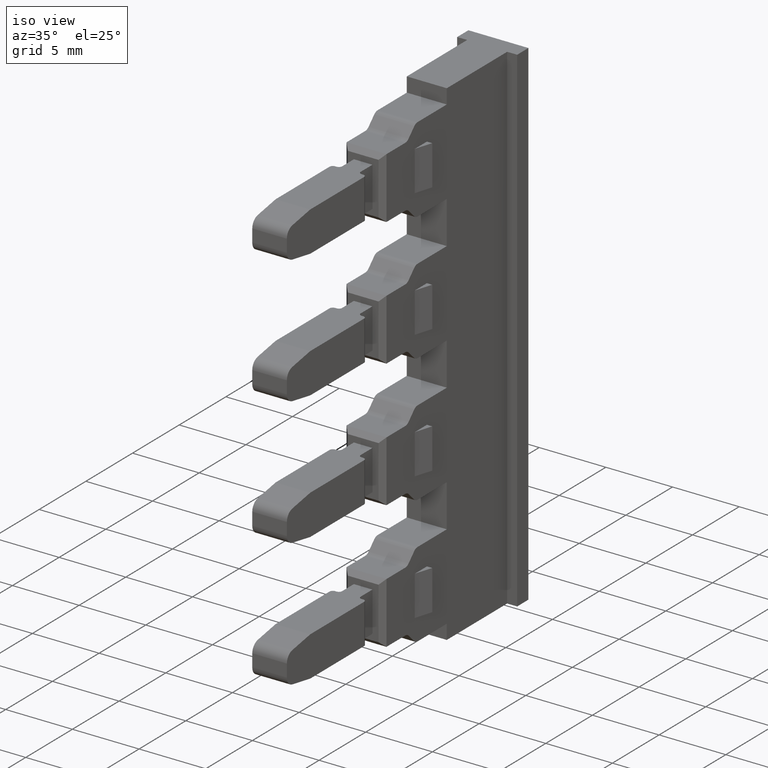
[diagram: clean part render]
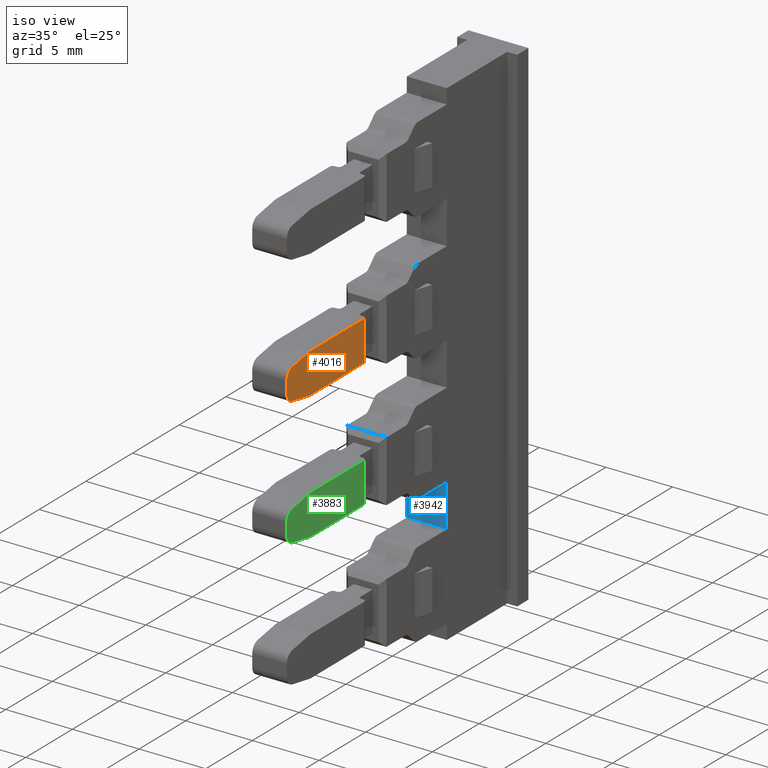
[diagram: same view with three faces highlighted in distinct colors, each labeled with its STEP entity id]
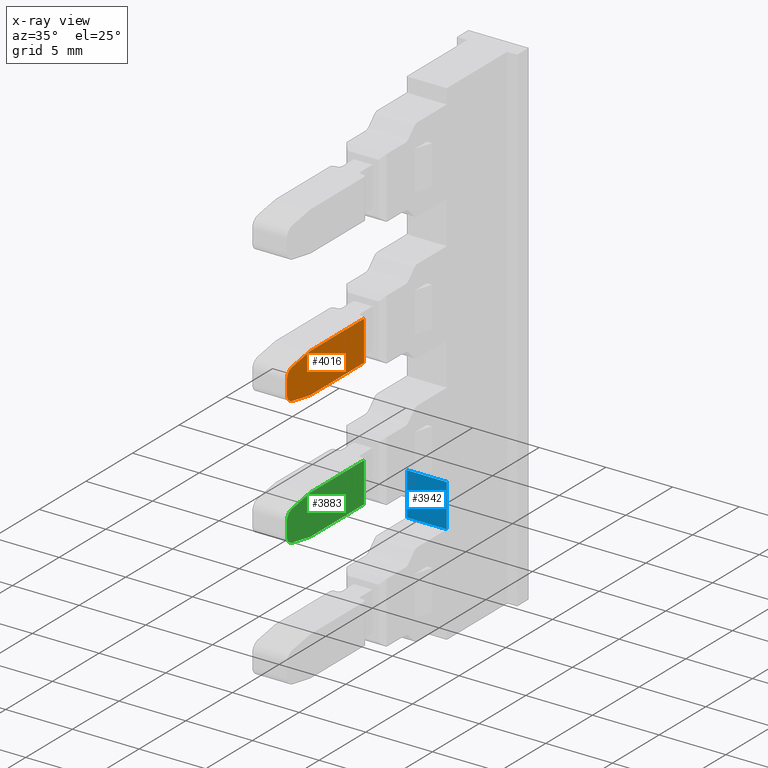
[diagram: x-ray of the same camera — body ghosted, the three highlighted faces saturated]
A machine part, iso view with three faces highlighted in distinct colors.
The next image is the same camera in x-ray (body ghosted, the three faces saturated) — at least one of them is partly hidden behind the body in this view.
Their STEP definitions:

[orange] entity #4016 — the highlighted planar face has unit normal (-1, 0, -0).
#45 = DIRECTION ( 'NONE',  ( -3.142629004551419200E-014, -1.000000000000000000, 0.0000000000000000000 ) ) ;
#48 = PLANE ( 'NONE',  #4123 ) ;
#75 = FACE_OUTER_BOUND ( 'NONE', #529, .T. ) ;
#76 = CARTESIAN_POINT ( 'NONE',  ( 112.0207181399667900, 234.7827890380837600, 54.47574725072586000 ) ) ;
#77 = DIRECTION ( 'NONE',  ( -1.000000000000000000, 3.142629004551419200E-014, -7.193572994225524900E-015 ) ) ;
#529 = EDGE_LOOP ( 'NONE', ( #1230, #1236, #1252, #1253, #1217, #1223, #1219, #1233 ) ) ;
#1217 = ORIENTED_EDGE ( 'NONE', *, *, #3507, .T. ) ;
#1219 = ORIENTED_EDGE ( 'NONE', *, *, #3586, .T. ) ;
#1223 = ORIENTED_EDGE ( 'NONE', *, *, #3469, .F. ) ;
#1230 = ORIENTED_EDGE ( 'NONE', *, *, #3518, .F. ) ;
#1233 = ORIENTED_EDGE ( 'NONE', *, *, #3556, .T. ) ;
#1236 = ORIENTED_EDGE ( 'NONE', *, *, #3503, .T. ) ;
#1252 = ORIENTED_EDGE ( 'NONE', *, *, #3530, .T. ) ;
#1253 = ORIENTED_EDGE ( 'NONE', *, *, #3521, .F. ) ;
#1604 = VERTEX_POINT ( 'NONE', #1917 ) ;
#1623 = VERTEX_POINT ( 'NONE', #1924 ) ;
#1647 = VERTEX_POINT ( 'NONE', #1998 ) ;
#1648 = VERTEX_POINT ( 'NONE', #1977 ) ;
#1676 = VERTEX_POINT ( 'NONE', #2001 ) ;
#1682 = VERTEX_POINT ( 'NONE', #2028 ) ;
#1707 = VERTEX_POINT ( 'NONE', #1974 ) ;
#1712 = VERTEX_POINT ( 'NONE', #2065 ) ;
#1917 = CARTESIAN_POINT ( 'NONE',  ( 112.0207181399666000, 225.8069065328585900, 41.03482381499118500 ) ) ;
#1924 = CARTESIAN_POINT ( 'NONE',  ( 112.0207181399667700, 234.0815789080009200, 40.00663662139600500 ) ) ;
#1974 = CARTESIAN_POINT ( 'NONE',  ( 112.0207181399666200, 226.3853528084916000, 40.34545838788266500 ) ) ;
#1977 = CARTESIAN_POINT ( 'NONE',  ( 112.0207181399666200, 226.3853528084917500, 42.66781485490893300 ) ) ;
#1998 = CARTESIAN_POINT ( 'NONE',  ( 112.0207181399668500, 234.0815789080009200, 43.00663662139592000 ) ) ;
#2001 = CARTESIAN_POINT ( 'NONE',  ( 112.0207181399666600, 228.3069065328583600, 40.00663662139602600 ) ) ;
#2028 = CARTESIAN_POINT ( 'NONE',  ( 112.0207181399667900, 228.3069065328599000, 43.00663662139583500 ) ) ;
#2065 = CARTESIAN_POINT ( 'NONE',  ( 112.0207181399665900, 225.8069065328585900, 41.97844942780034900 ) ) ;
#3469 = EDGE_CURVE ( 'NONE', #1707, #1604, #5809, .T. ) ;
#3503 = EDGE_CURVE ( 'NONE', #1647, #1682, #4838, .T. ) ;
#3507 = EDGE_CURVE ( 'NONE', #1712, #1604, #4848, .T. ) ;
#3518 = EDGE_CURVE ( 'NONE', #1647, #1623, #4874, .T. ) ;
#3521 = EDGE_CURVE ( 'NONE', #1712, #1648, #5196, .T. ) ;
#3530 = EDGE_CURVE ( 'NONE', #1682, #1648, #4946, .T. ) ;
#3556 = EDGE_CURVE ( 'NONE', #1676, #1623, #4990, .T. ) ;
#3586 = EDGE_CURVE ( 'NONE', #1707, #1676, #5093, .T. ) ;
#4016 = ADVANCED_FACE ( 'NONE', ( #75 ), #48, .F. ) ;
#4123 = AXIS2_PLACEMENT_3D ( 'NONE', #76, #77, #45 ) ;
#4727 = DIRECTION ( 'NONE',  ( -1.000000000000000000, -2.643655590711540000E-014, -7.193572994224081300E-015 ) ) ;
#4734 = CARTESIAN_POINT ( 'NONE',  ( 112.0207181399666000, 226.5069065328586100, 41.03482381499119200 ) ) ;
#4752 = DIRECTION ( 'NONE',  ( 1.982541115402047700E-014, -1.000000000000000000, 0.0000000000000000000 ) ) ;
#4836 = CARTESIAN_POINT ( 'NONE',  ( 112.0207181399668500, 238.6101602475987400, 43.00663662139601200 ) ) ;
#4838 = LINE ( 'NONE', #4836, #5206 ) ;
#4839 = DIRECTION ( 'NONE',  ( -0.0000000000000000000, -1.000000000000000000, -2.594839121907101700E-014 ) ) ;
#4843 = CARTESIAN_POINT ( 'NONE',  ( 112.0207181399665900, 225.8069065328585900, 41.97844942780043500 ) ) ;
#4848 = LINE ( 'NONE', #4843, #5219 ) ;
#4862 = DIRECTION ( 'NONE',  ( 1.027851262480033000E-041, -3.887992316742691900E-028, -1.000000000000000000 ) ) ;
#4867 = CARTESIAN_POINT ( 'NONE',  ( 112.0207181399668500, 234.0815789080009200, 43.00663662139594100 ) ) ;
#4874 = LINE ( 'NONE', #4867, #5177 ) ;
#4877 = CARTESIAN_POINT ( 'NONE',  ( 112.0207181399665800, 226.5069065328586100, 41.97844942780037800 ) ) ;
#4883 = DIRECTION ( 'NONE',  ( 7.193572994225524900E-015, -5.441398086515932400E-029, -1.000000000000000000 ) ) ;
#4885 = DIRECTION ( 'NONE',  ( 1.982541115402047700E-014, -1.000000000000000000, 0.0000000000000000000 ) ) ;
#4900 = DIRECTION ( 'NONE',  ( -1.000000000000000000, -2.643655590711540000E-014, -7.193572994224081300E-015 ) ) ;
#4920 = CARTESIAN_POINT ( 'NONE',  ( 112.0207181399666600, 228.3069065328599300, 43.00663662139599100 ) ) ;
#4925 = DIRECTION ( 'NONE',  ( -0.0000000000000000000, -0.9848077530121975800, -0.1736481776669893700 ) ) ;
#4946 = LINE ( 'NONE', #4920, #5244 ) ;
#4960 = CARTESIAN_POINT ( 'NONE',  ( 112.0207181399666800, 238.6101602475987400, 40.00663662139589900 ) ) ;
#4990 = LINE ( 'NONE', #4960, #5224 ) ;
#4991 = DIRECTION ( 'NONE',  ( -0.0000000000000000000, 1.000000000000000000, -1.504573015594194000E-014 ) ) ;
#5063 = CARTESIAN_POINT ( 'NONE',  ( 112.0207181399666200, 228.3069065328586200, 40.00663662139595500 ) ) ;
#5067 = DIRECTION ( 'NONE',  ( -0.0000000000000000000, 0.9848077530122110200, -0.1736481776669129600 ) ) ;
#5093 = LINE ( 'NONE', #5063, #5298 ) ;
#5168 = AXIS2_PLACEMENT_3D ( 'NONE', #4877, #4900, #4885 ) ;
#5177 = VECTOR ( 'NONE', #4883, 1000.000000000000000 ) ;
#5196 = CIRCLE ( 'NONE', #5168, 0.7000000000000061700 ) ;
#5206 = VECTOR ( 'NONE', #4839, 1000.000000000000000 ) ;
#5219 = VECTOR ( 'NONE', #4862, 1000.000000000000000 ) ;
#5224 = VECTOR ( 'NONE', #4991, 1000.000000000000000 ) ;
#5244 = VECTOR ( 'NONE', #4925, 1000.000000000000100 ) ;
#5298 = VECTOR ( 'NONE', #5067, 1000.000000000000200 ) ;
#5807 = AXIS2_PLACEMENT_3D ( 'NONE', #4734, #4727, #4752 ) ;
#5809 = CIRCLE ( 'NONE', #5807, 0.7000000000000061700 ) ;

[blue] entity #3942 — the highlighted planar face has unit normal (0, -1, 0).
#597 = EDGE_LOOP ( 'NONE', ( #1155, #1158, #1195, #1180 ) ) ;
#1155 = ORIENTED_EDGE ( 'NONE', *, *, #3830, .F. ) ;
#1158 = ORIENTED_EDGE ( 'NONE', *, *, #3485, .F. ) ;
#1180 = ORIENTED_EDGE ( 'NONE', *, *, #3509, .F. ) ;
#1195 = ORIENTED_EDGE ( 'NONE', *, *, #3886, .T. ) ;
#1468 = VERTEX_POINT ( 'NONE', #1832 ) ;
#1496 = VERTEX_POINT ( 'NONE', #1828 ) ;
#1510 = VERTEX_POINT ( 'NONE', #1833 ) ;
#1549 = VERTEX_POINT ( 'NONE', #1887 ) ;
#1828 = CARTESIAN_POINT ( 'NONE',  ( 112.2279176201152200, 242.6435672046340500, 28.70663662139570600 ) ) ;
#1832 = CARTESIAN_POINT ( 'NONE',  ( 109.2279176201152900, 242.6435672046341100, 25.50663662139554300 ) ) ;
#1833 = CARTESIAN_POINT ( 'NONE',  ( 112.2279176201153200, 242.6435672046341100, 25.50663662139566100 ) ) ;
#1887 = CARTESIAN_POINT ( 'NONE',  ( 109.2279176201152600, 242.6435672046340500, 28.70663662139569900 ) ) ;
#2646 = LINE ( 'NONE', #2658, #5591 ) ;
#2658 = CARTESIAN_POINT ( 'NONE',  ( 112.2279176201151200, 242.6435672046340800, 44.20663662139587300 ) ) ;
#2666 = DIRECTION ( 'NONE',  ( 7.193572994224081300E-015, 1.901732946337204600E-028, -1.000000000000000000 ) ) ;
#2853 = CARTESIAN_POINT ( 'NONE',  ( 109.2279176201152500, 242.6435672046340000, 28.70663662139552500 ) ) ;
#2862 = DIRECTION ( 'NONE',  ( 0.0000000000000000000, -0.0000000000000000000, -1.000000000000000000 ) ) ;
#2871 = LINE ( 'NONE', #2853, #5671 ) ;
#3126 = PLANE ( 'NONE',  #5698 ) ;
#3128 = DIRECTION ( 'NONE',  ( 1.000000000000000000, 2.643655590711540000E-014, 0.0000000000000000000 ) ) ;
#3154 = CARTESIAN_POINT ( 'NONE',  ( 86.90330753495023000, 242.6435672046334300, 28.70663662139552500 ) ) ;
#3158 = FACE_OUTER_BOUND ( 'NONE', #597, .T. ) ;
#3164 = DIRECTION ( 'NONE',  ( 2.643655590711540000E-014, -1.000000000000000000, 0.0000000000000000000 ) ) ;
#3485 = EDGE_CURVE ( 'NONE', #1549, #1496, #4812, .T. ) ;
#3509 = EDGE_CURVE ( 'NONE', #1510, #1468, #4854, .T. ) ;
#3830 = EDGE_CURVE ( 'NONE', #1496, #1510, #2646, .T. ) ;
#3886 = EDGE_CURVE ( 'NONE', #1549, #1468, #2871, .T. ) ;
#3942 = ADVANCED_FACE ( 'NONE', ( #3158 ), #3126, .T. ) ;
#4776 = DIRECTION ( 'NONE',  ( 1.000000000000000000, 6.372034080649165700E-029, 7.193572994224316300E-015 ) ) ;
#4810 = CARTESIAN_POINT ( 'NONE',  ( 86.90330753495030100, 242.6435672046340800, 28.70663662139552500 ) ) ;
#4812 = LINE ( 'NONE', #4810, #5176 ) ;
#4845 = CARTESIAN_POINT ( 'NONE',  ( 86.90330753495023000, 242.6435672046341400, 25.50663662139548600 ) ) ;
#4854 = LINE ( 'NONE', #4845, #5161 ) ;
#4856 = DIRECTION ( 'NONE',  ( -1.000000000000000000, -0.0000000000000000000, -7.193572994224081300E-015 ) ) ;
#5161 = VECTOR ( 'NONE', #4856, 1000.000000000000000 ) ;
#5176 = VECTOR ( 'NONE', #4776, 1000.000000000000000 ) ;
#5591 = VECTOR ( 'NONE', #2666, 1000.000000000000000 ) ;
#5671 = VECTOR ( 'NONE', #2862, 1000.000000000000000 ) ;
#5698 = AXIS2_PLACEMENT_3D ( 'NONE', #3154, #3164, #3128 ) ;

[green] entity #3883 — the highlighted planar face has unit normal (-1, 0, -0).
#527 = EDGE_LOOP ( 'NONE', ( #2361, #2374, #2394, #2386, #2354, #2345, #2389, #2336 ) ) ;
#1559 = VERTEX_POINT ( 'NONE', #1869 ) ;
#1620 = VERTEX_POINT ( 'NONE', #1964 ) ;
#1628 = VERTEX_POINT ( 'NONE', #1918 ) ;
#1629 = VERTEX_POINT ( 'NONE', #1932 ) ;
#1633 = VERTEX_POINT ( 'NONE', #1951 ) ;
#1636 = VERTEX_POINT ( 'NONE', #1944 ) ;
#1642 = VERTEX_POINT ( 'NONE', #1954 ) ;
#1643 = VERTEX_POINT ( 'NONE', #1955 ) ;
#1869 = CARTESIAN_POINT ( 'NONE',  ( 112.0207181399667200, 228.3069065328584200, 30.40663662139603200 ) ) ;
#1918 = CARTESIAN_POINT ( 'NONE',  ( 112.0207181399669200, 234.0815789080009800, 33.40663662139592600 ) ) ;
#1932 = CARTESIAN_POINT ( 'NONE',  ( 112.0207181399666600, 225.8069065328586500, 32.37844942780035500 ) ) ;
#1944 = CARTESIAN_POINT ( 'NONE',  ( 112.0207181399668600, 228.3069065328599500, 33.40663662139583300 ) ) ;
#1951 = CARTESIAN_POINT ( 'NONE',  ( 112.0207181399668500, 234.0815789080009800, 30.40663662139600400 ) ) ;
#1954 = CARTESIAN_POINT ( 'NONE',  ( 112.0207181399666900, 226.3853528084918000, 33.06781485490893900 ) ) ;
#1955 = CARTESIAN_POINT ( 'NONE',  ( 112.0207181399666800, 225.8069065328586500, 31.43482381499118700 ) ) ;
#1964 = CARTESIAN_POINT ( 'NONE',  ( 112.0207181399666900, 226.3853528084916600, 30.74545838788266700 ) ) ;
#2098 = LINE ( 'NONE', #2129, #5732 ) ;
#2109 = DIRECTION ( 'NONE',  ( 1.027851262480033000E-041, -3.887992316742691900E-028, -1.000000000000000000 ) ) ;
#2129 = CARTESIAN_POINT ( 'NONE',  ( 112.0207181399666600, 225.8069065328586500, 32.37844942780044000 ) ) ;
#2160 = CARTESIAN_POINT ( 'NONE',  ( 112.0207181399666800, 226.5069065328586600, 31.43482381499119400 ) ) ;
#2161 = DIRECTION ( 'NONE',  ( -1.000000000000000000, -2.643655590711540000E-014, -7.193572994224081300E-015 ) ) ;
#2162 = DIRECTION ( 'NONE',  ( 1.982541115402047700E-014, -1.000000000000000000, 0.0000000000000000000 ) ) ;
#2182 = CARTESIAN_POINT ( 'NONE',  ( 112.0207181399669200, 238.6101602475988000, 33.40663662139601800 ) ) ;
#2183 = DIRECTION ( 'NONE',  ( -0.0000000000000000000, -1.000000000000000000, -2.594839121907101700E-014 ) ) ;
#2216 = LINE ( 'NONE', #2182, #5800 ) ;
#2232 = LINE ( 'NONE', #2256, #5777 ) ;
#2250 = DIRECTION ( 'NONE',  ( -0.0000000000000000000, 0.9848077530122110200, -0.1736481776669129600 ) ) ;
#2256 = CARTESIAN_POINT ( 'NONE',  ( 112.0207181399666900, 228.3069065328586800, 30.40663662139595800 ) ) ;
#2336 = ORIENTED_EDGE ( 'NONE', *, *, #3526, .T. ) ;
#2345 = ORIENTED_EDGE ( 'NONE', *, *, #3404, .F. ) ;
#2354 = ORIENTED_EDGE ( 'NONE', *, *, #3386, .T. ) ;
#2361 = ORIENTED_EDGE ( 'NONE', *, *, #3450, .F. ) ;
#2374 = ORIENTED_EDGE ( 'NONE', *, *, #3419, .T. ) ;
#2386 = ORIENTED_EDGE ( 'NONE', *, *, #3473, .F. ) ;
#2389 = ORIENTED_EDGE ( 'NONE', *, *, #3430, .T. ) ;
#2394 = ORIENTED_EDGE ( 'NONE', *, *, #3467, .T. ) ;
#2845 = DIRECTION ( 'NONE',  ( -3.142629004551419200E-014, -1.000000000000000000, 0.0000000000000000000 ) ) ;
#2848 = DIRECTION ( 'NONE',  ( -1.000000000000000000, 3.142629004551419200E-014, -7.193572994225524900E-015 ) ) ;
#2850 = FACE_OUTER_BOUND ( 'NONE', #527, .T. ) ;
#2854 = PLANE ( 'NONE',  #5667 ) ;
#2861 = CARTESIAN_POINT ( 'NONE',  ( 112.0207181399668600, 234.7827890380838200, 44.87574725072586500 ) ) ;
#3386 = EDGE_CURVE ( 'NONE', #1629, #1643, #2098, .T. ) ;
#3404 = EDGE_CURVE ( 'NONE', #1620, #1643, #5775, .T. ) ;
#3419 = EDGE_CURVE ( 'NONE', #1628, #1636, #2216, .T. ) ;
#3430 = EDGE_CURVE ( 'NONE', #1620, #1559, #2232, .T. ) ;
#3450 = EDGE_CURVE ( 'NONE', #1628, #1633, #4675, .T. ) ;
#3467 = EDGE_CURVE ( 'NONE', #1636, #1642, #4706, .T. ) ;
#3473 = EDGE_CURVE ( 'NONE', #1629, #1642, #5220, .T. ) ;
#3526 = EDGE_CURVE ( 'NONE', #1559, #1633, #4904, .T. ) ;
#3883 = ADVANCED_FACE ( 'NONE', ( #2850 ), #2854, .F. ) ;
#4675 = LINE ( 'NONE', #4676, #5814 ) ;
#4676 = CARTESIAN_POINT ( 'NONE',  ( 112.0207181399669200, 234.0815789080009800, 33.40663662139594700 ) ) ;
#4680 = DIRECTION ( 'NONE',  ( 7.193572994225524900E-015, -5.441398086515932400E-029, -1.000000000000000000 ) ) ;
#4706 = LINE ( 'NONE', #4719, #5830 ) ;
#4719 = CARTESIAN_POINT ( 'NONE',  ( 112.0207181399667200, 228.3069065328599800, 33.40663662139599700 ) ) ;
#4730 = DIRECTION ( 'NONE',  ( -1.000000000000000000, -2.643655590711540000E-014, -7.193572994224081300E-015 ) ) ;
#4732 = DIRECTION ( 'NONE',  ( -0.0000000000000000000, -0.9848077530121975800, -0.1736481776669893700 ) ) ;
#4744 = DIRECTION ( 'NONE',  ( 1.982541115402047700E-014, -1.000000000000000000, 0.0000000000000000000 ) ) ;
#4756 = CARTESIAN_POINT ( 'NONE',  ( 112.0207181399666500, 226.5069065328586600, 32.37844942780038300 ) ) ;
#4881 = DIRECTION ( 'NONE',  ( -0.0000000000000000000, 1.000000000000000000, -1.504573015594194000E-014 ) ) ;
#4904 = LINE ( 'NONE', #4905, #5236 ) ;
#4905 = CARTESIAN_POINT ( 'NONE',  ( 112.0207181399667300, 238.6101602475988000, 30.40663662139590100 ) ) ;
#5172 = AXIS2_PLACEMENT_3D ( 'NONE', #4756, #4730, #4744 ) ;
#5220 = CIRCLE ( 'NONE', #5172, 0.7000000000000061700 ) ;
#5236 = VECTOR ( 'NONE', #4881, 1000.000000000000000 ) ;
#5667 = AXIS2_PLACEMENT_3D ( 'NONE', #2861, #2848, #2845 ) ;
#5732 = VECTOR ( 'NONE', #2109, 1000.000000000000000 ) ;
#5775 = CIRCLE ( 'NONE', #5789, 0.7000000000000061700 ) ;
#5777 = VECTOR ( 'NONE', #2250, 1000.000000000000200 ) ;
#5789 = AXIS2_PLACEMENT_3D ( 'NONE', #2160, #2161, #2162 ) ;
#5800 = VECTOR ( 'NONE', #2183, 1000.000000000000000 ) ;
#5814 = VECTOR ( 'NONE', #4680, 1000.000000000000000 ) ;
#5830 = VECTOR ( 'NONE', #4732, 1000.000000000000100 ) ;